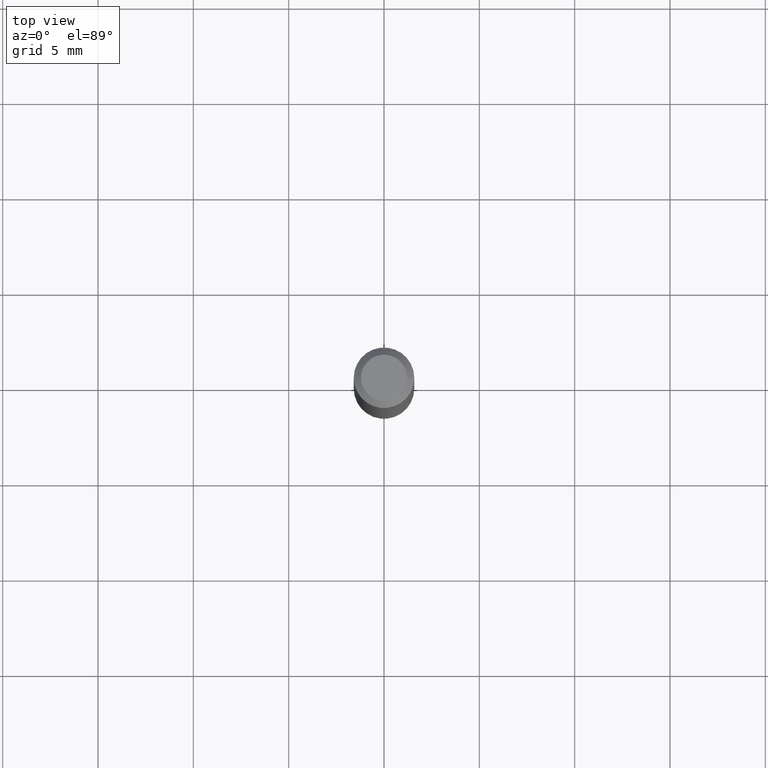
[diagram: clean part render]
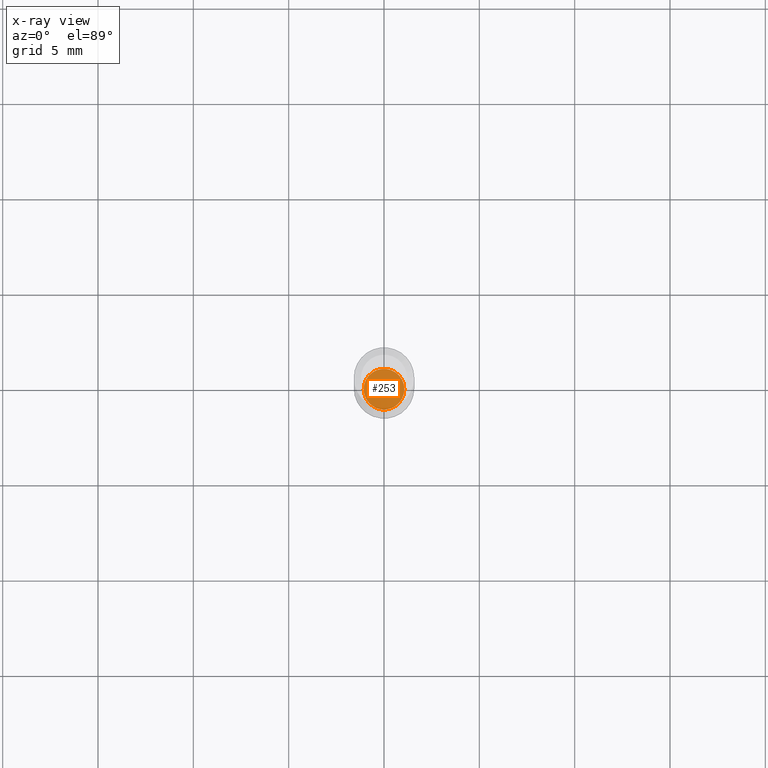
[diagram: x-ray — body ghosted, one internal face saturated and labeled with its STEP entity id]
A machine part, top view, then the same camera in x-ray: the body is ghosted and one INTERNAL B-rep face — a face not visible from any outside direction — is saturated and labeled: STEP entity #253.
In plain terms, the highlighted planar face has unit normal (-0, 0, 1).
Its self-contained STEP definition (entity closure, byte-faithful):
#34 = VERTEX_POINT ( 'NONE', #320 ) ;
#37 = ORIENTED_EDGE ( 'NONE', *, *, #338, .F. ) ;
#87 = AXIS2_PLACEMENT_3D ( 'NONE', #309, #475, #277 ) ;
#91 = ORIENTED_EDGE ( 'NONE', *, *, #362, .F. ) ;
#106 = PLANE ( 'NONE',  #351 ) ;
#112 = CIRCLE ( 'NONE', #181, 0.04199999999999998873 ) ;
#181 = AXIS2_PLACEMENT_3D ( 'NONE', #388, #353, #517 ) ;
#228 = FACE_OUTER_BOUND ( 'NONE', #343, .T. ) ;
#253 = ADVANCED_FACE ( 'NONE', ( #228 ), #106, .F. ) ;
#272 = DIRECTION ( 'NONE',  ( -2.438088387897960049E-29, 3.491481338843145188E-15, 1.000000000000000000 ) ) ;
#277 = DIRECTION ( 'NONE',  ( 1.000000000000000000, -6.982962677686265133E-15, 0.000000000000000000 ) ) ;
#303 = VERTEX_POINT ( 'NONE', #421 ) ;
#309 = CARTESIAN_POINT ( 'NONE',  ( 3.356405936489099934E-29, -4.792058137562217412E-15, -1.372500000000000275 ) ) ;
#320 = CARTESIAN_POINT ( 'NONE',  ( -0.04199999999999998873, -4.490980961368863868E-15, -1.372500000000000275 ) ) ;
#338 = EDGE_CURVE ( 'NONE', #303, #34, #112, .T. ) ;
#343 = EDGE_LOOP ( 'NONE', ( #37, #91 ) ) ;
#351 = AXIS2_PLACEMENT_3D ( 'NONE', #506, #272, #514 ) ;
#353 = DIRECTION ( 'NONE',  ( -2.445468806185136597E-29, 3.491481338843145583E-15, 1.000000000000000000 ) ) ;
#362 = EDGE_CURVE ( 'NONE', #34, #303, #443, .T. ) ;
#388 = CARTESIAN_POINT ( 'NONE',  ( 3.356405936489099934E-29, -4.792058137562217412E-15, -1.372500000000000275 ) ) ;
#421 = CARTESIAN_POINT ( 'NONE',  ( 0.04199999999999998873, -5.085342570025040266E-15, -1.372500000000000275 ) ) ;
#443 = CIRCLE ( 'NONE', #87, 0.04199999999999998873 ) ;
#475 = DIRECTION ( 'NONE',  ( -2.445468806185136597E-29, 3.491481338843145583E-15, 1.000000000000000000 ) ) ;
#506 = CARTESIAN_POINT ( 'NONE',  ( 3.356405936489099934E-29, -4.792058137562217412E-15, -1.372500000000000275 ) ) ;
#514 = DIRECTION ( 'NONE',  ( 1.000000000000000000, -6.982962677686265922E-15, 4.876176775795935793E-29 ) ) ;
#517 = DIRECTION ( 'NONE',  ( 1.000000000000000000, -6.982962677686265133E-15, 0.000000000000000000 ) ) ;